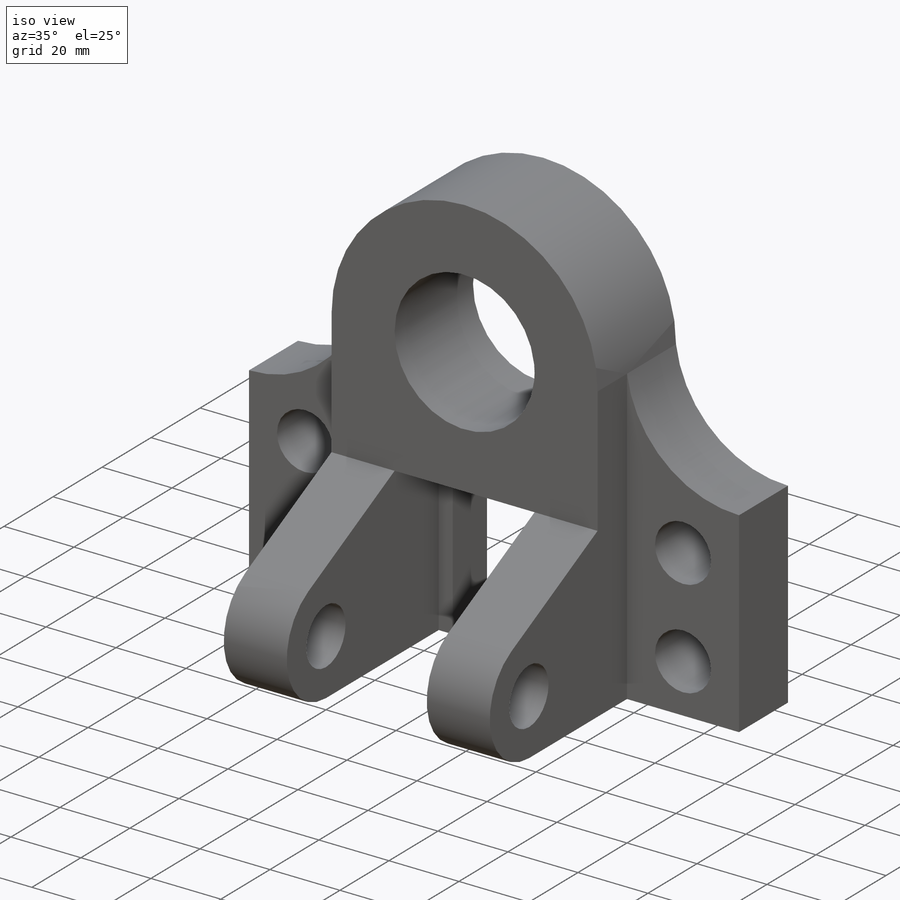
[diagram: iso view]
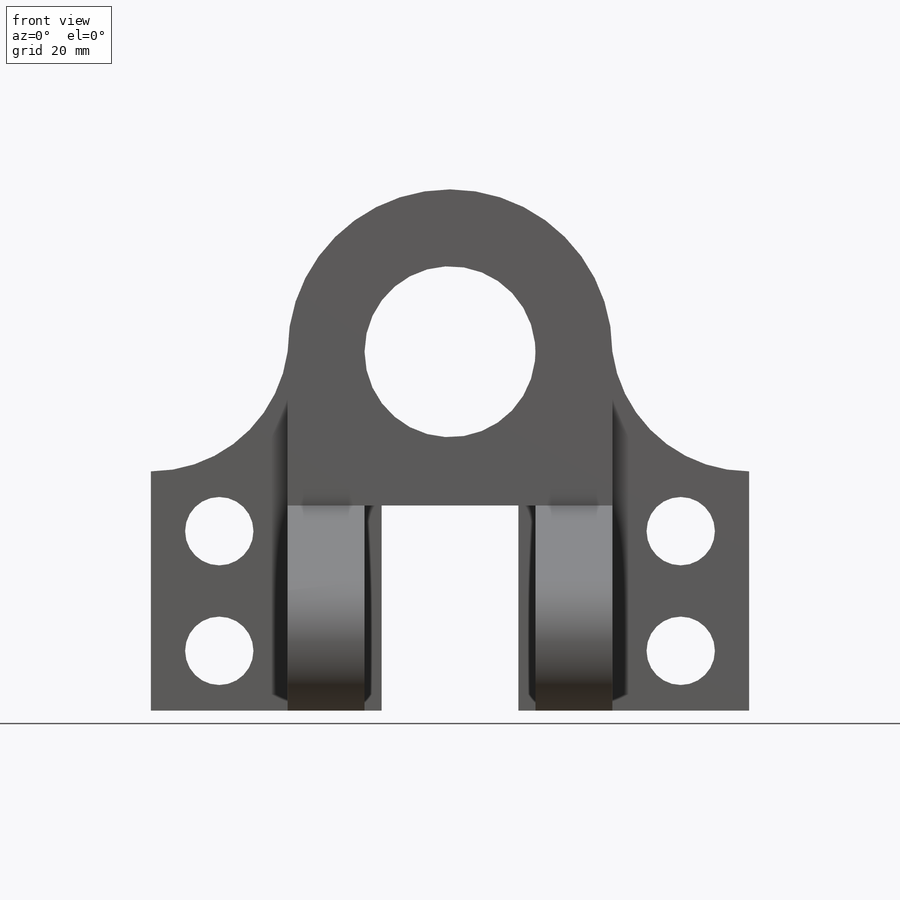
[diagram: front view]
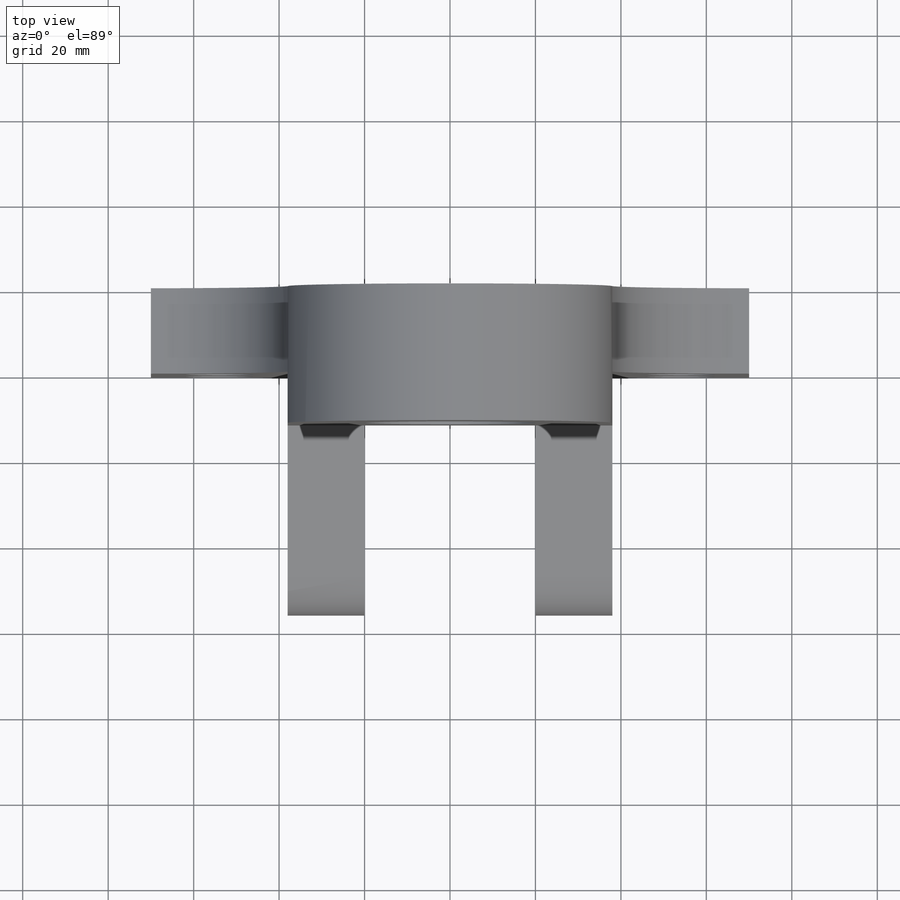
[diagram: top view]
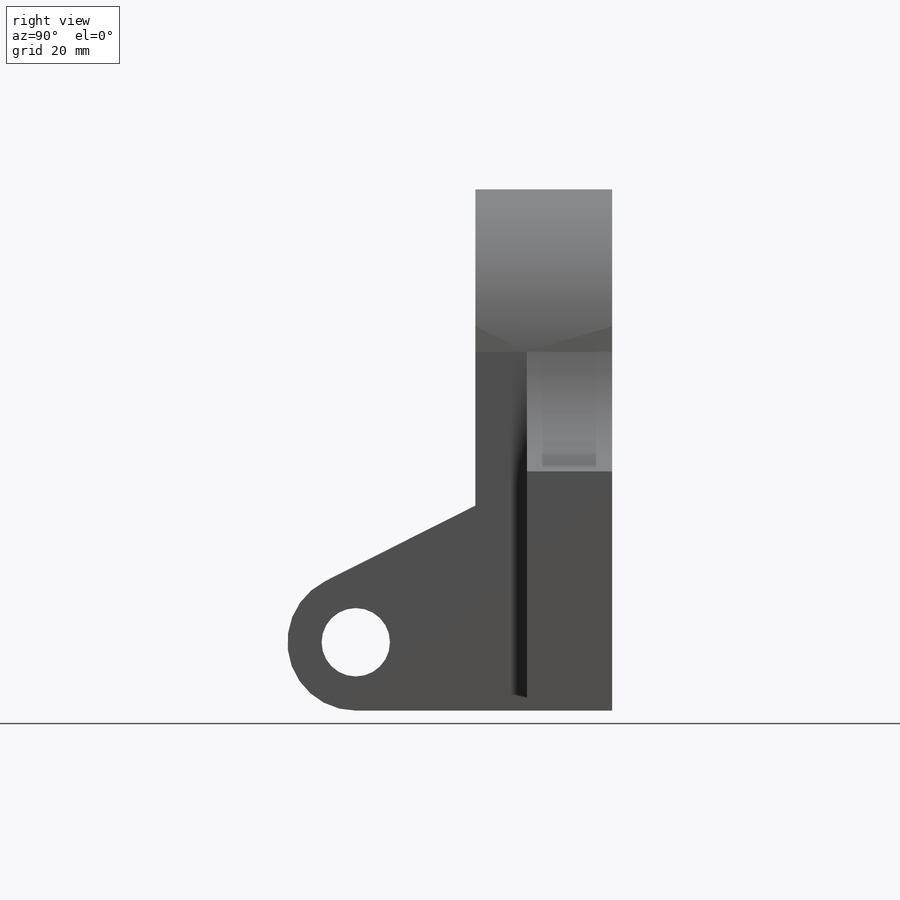
[diagram: right view]
SOLIDWORKS PART (.sldprt)
format: sldprt  version: not decoded by parser v0  size: 664,576 bytes
history: native  units: mm
features: sketch x12, extrude x6, hole x3, pattern_linear x3, mirror x3, material x1, plane x1 (+12 scaffold rows collapsed)
feature tree (41):
  scaffold x12  (default folders/planes/origin — collapsed)
  material  "Material <not specified>"
  sketch  "Sketch1"  dims[D1=56.0mm]
  extrude  "Boss-Extrude1"  Depth=32mm
  plane  "Plane5"
  sketch  "Sketch3"  dims[D1=56.0mm]
  extrude  "Boss-Extrude2"  Depth=20mm
  hole  "Ø16.0mm Dowel Hole1"  Diameter=16mm Depth=20mm
  sketch  "Sketch11"  dims[c1.D1=16.0mm c1.D2=~20.645567mm c2.D2=90.0deg c3.D2=~20.645567mm c3.D1=16.0mm c4.D2=~20.645567mm c5.D2=90.0deg c6.D2=~20.645567mm c6.D1=16.0mm c7.D2=42.0mm]
  sketch  "Sketch10"  dims[hole-wizard template sketch: 59 standard entries collapsed; hole parameters kept: c18.Thru Hole Dia.=16.0mm c18.Thru Hole Depth=20.0mm]
  pattern_linear  "LPattern2"  Count1=2 Count2=1 Spacing1=28mm Spacing2=50mm
  mirror  "Mirror3"
  hole  "Ø16.0mm Dowel Hole2"  Diameter=16mm Depth=20mm
  sketch  "Sketch14"  dims[D1=16.0mm D2=42.0mm]
  sketch  "Sketch13"  dims[hole-wizard template sketch: 59 standard entries collapsed; hole parameters kept: c18.Thru Hole Dia.=16.0mm c18.Thru Hole Depth=20.0mm]
  pattern_linear  "LPattern4"  Count1=2 Count2=1 Spacing1=28mm Spacing2=50mm
  sketch  "Sketch15"  dims[D1=56.0mm]
  extrude  "Boss-Extrude3"  Depth=20mm
  sketch  "Sketch16"  dims[D1=32.0mm]
  extrude  "Boss-Extrude4"  Depth=20mm
  hole  "Ø16.0mm Dowel Hole3"  Diameter=16mm Depth=20mm
  sketch  "Sketch18"  dims[D1=16.0mm D2=42.0mm]
  sketch  "Sketch19"  dims[hole-wizard template sketch: 59 standard entries collapsed; hole parameters kept: c18.Thru Hole Dia.=16.0mm c18.Thru Hole Depth=20.0mm]
  pattern_linear  "LPattern5"  Count1=2 Count2=1 Spacing1=28mm Spacing2=10mm
  mirror  "Mirror5"
  sketch  "Sketch25"  dims[c1.D1=~17.047118mm c1.D2=16.0mm c1.D3=16.0mm c2.D1=60.0mm]
  extrude  "Boss-Extrude6"  Depth=18mm
  sketch  "Sketch26"  dims[D1=14.0mm]
  extrude  "Boss-Extrude7"  Depth=4mm
  mirror  "Mirror6"
decode coverage: 24 of 27 modeling features carry decoded parameters
note: ~ marks probable driven/reference dimensions
note: suppression state not decoded; provenance and decode notes live in map.json
